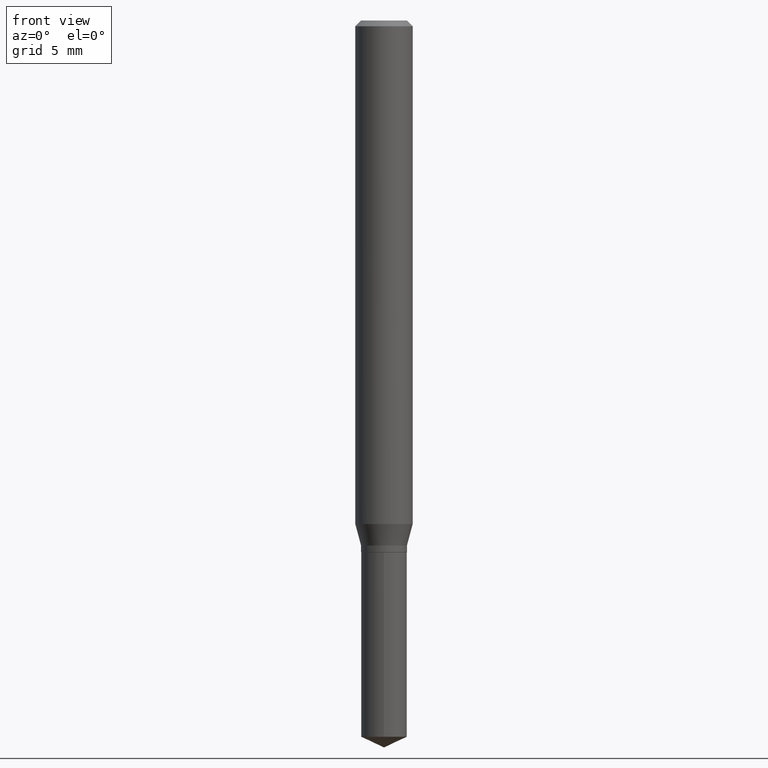
[diagram: clean part render]
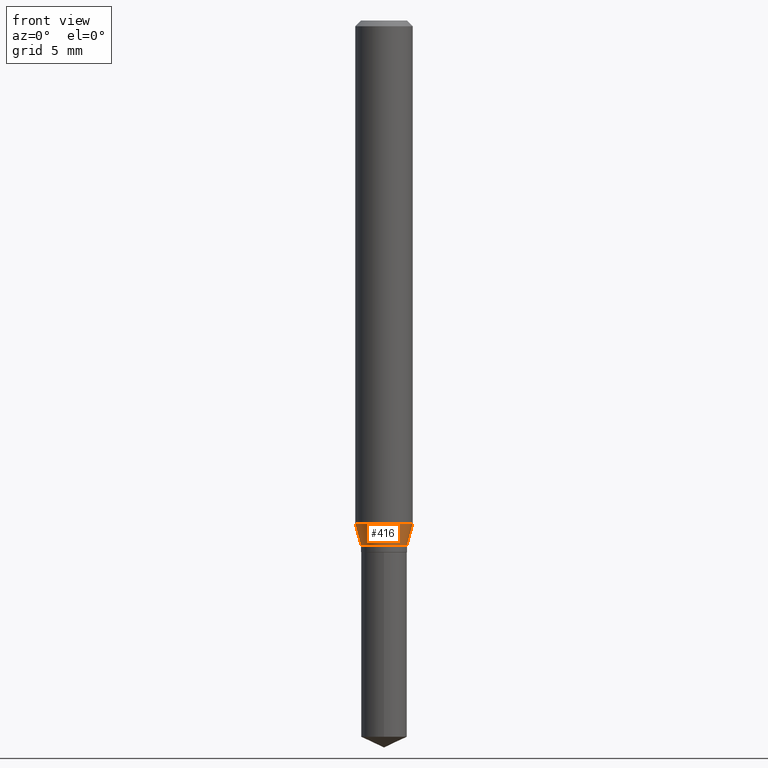
[diagram: same view with one face highlighted and labeled with its STEP entity id]
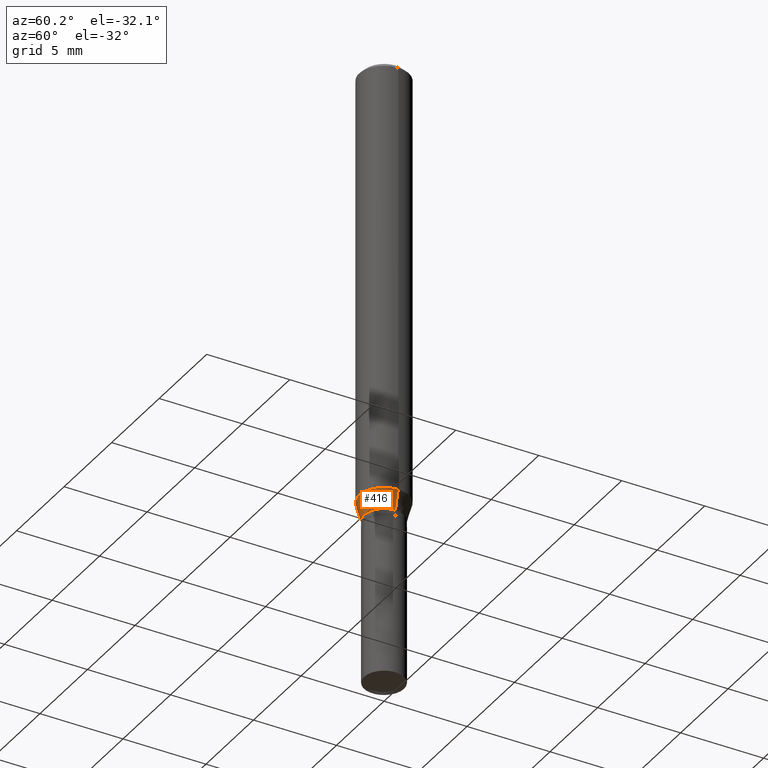
[diagram: same view with one face highlighted and labeled with its STEP entity id]
A machine part, front view. The second image highlights one B-rep face of the part: STEP entity #416.
A second angle (auxiliary view) of the same face is appended — the face is thin or edge-on in the first view.
In plain terms, the highlighted conical surface has half-angle 15 deg.
Its self-contained STEP definition (entity closure, byte-faithful):
#7 = AXIS2_PLACEMENT_3D ( 'NONE', #478, #299, #243 ) ;
#10 = EDGE_CURVE ( 'NONE', #398, #271, #461, .T. ) ;
#19 = DIRECTION ( 'NONE',  ( -0.2588190451025214611, 5.211531920934550253E-15, 0.9659258262890679791 ) ) ;
#28 = CARTESIAN_POINT ( 'NONE',  ( 0.04724999999999997952, -4.101792276872925713E-15, -1.080300000000000038 ) ) ;
#29 = DIRECTION ( 'NONE',  ( 1.000000000000000000, -6.982962677686269077E-15, 0.000000000000000000 ) ) ;
#53 = AXIS2_PLACEMENT_3D ( 'NONE', #356, #207, #29 ) ;
#84 = ORIENTED_EDGE ( 'NONE', *, *, #419, .F. ) ;
#91 = VERTEX_POINT ( 'NONE', #217 ) ;
#97 = VERTEX_POINT ( 'NONE', #178 ) ;
#111 = ORIENTED_EDGE ( 'NONE', *, *, #130, .T. ) ;
#130 = EDGE_CURVE ( 'NONE', #271, #91, #382, .T. ) ;
#136 = CONICAL_SURFACE ( 'NONE', #226, 0.04724999999999997952, 0.2617993877991501850 ) ;
#172 = ORIENTED_EDGE ( 'NONE', *, *, #10, .T. ) ;
#178 = CARTESIAN_POINT ( 'NONE',  ( -0.05905000000000013016, -3.198513253033061898E-15, -1.036261800470686723 ) ) ;
#184 = CARTESIAN_POINT ( 'NONE',  ( -0.04724999999999997952, -3.460032494876678049E-15, -1.080300000000000038 ) ) ;
#199 = CARTESIAN_POINT ( 'NONE',  ( 0.04724999999999997952, -4.101792276872925713E-15, -1.080300000000000038 ) ) ;
#207 = DIRECTION ( 'NONE',  ( -2.445468806185136597E-29, 3.491481338843145583E-15, 1.000000000000000000 ) ) ;
#217 = CARTESIAN_POINT ( 'NONE',  ( 0.05905000000000013016, -4.030432684616777494E-15, -1.036261800470686723 ) ) ;
#219 = VECTOR ( 'NONE', #19, 39.37007874015748143 ) ;
#220 = VECTOR ( 'NONE', #464, 39.37007874015748143 ) ;
#223 = DIRECTION ( 'NONE',  ( 1.000000000000000000, -6.982962677686269077E-15, 0.000000000000000000 ) ) ;
#226 = AXIS2_PLACEMENT_3D ( 'NONE', #230, #430, #223 ) ;
#230 = CARTESIAN_POINT ( 'NONE',  ( 2.641839951321803071E-29, -3.771847290352249705E-15, -1.080300000000000038 ) ) ;
#243 = DIRECTION ( 'NONE',  ( 1.000000000000000000, -6.982962677686265133E-15, 0.000000000000000000 ) ) ;
#251 = EDGE_CURVE ( 'NONE', #398, #97, #310, .T. ) ;
#271 = VERTEX_POINT ( 'NONE', #28 ) ;
#290 = CIRCLE ( 'NONE', #7, 0.05905000000000013016 ) ;
#299 = DIRECTION ( 'NONE',  ( -2.445468806185136597E-29, 3.491481338843145583E-15, 1.000000000000000000 ) ) ;
#310 = LINE ( 'NONE', #387, #219 ) ;
#356 = CARTESIAN_POINT ( 'NONE',  ( 2.641839951321803071E-29, -3.771847290352249705E-15, -1.080300000000000038 ) ) ;
#368 = EDGE_LOOP ( 'NONE', ( #383, #172, #111, #84 ) ) ;
#382 = LINE ( 'NONE', #199, #220 ) ;
#383 = ORIENTED_EDGE ( 'NONE', *, *, #251, .F. ) ;
#387 = CARTESIAN_POINT ( 'NONE',  ( -0.04724999999999997952, -3.436115847705603055E-15, -1.080300000000000038 ) ) ;
#398 = VERTEX_POINT ( 'NONE', #184 ) ;
#416 = ADVANCED_FACE ( 'NONE', ( #470 ), #136, .T. ) ;
#419 = EDGE_CURVE ( 'NONE', #97, #91, #290, .T. ) ;
#430 = DIRECTION ( 'NONE',  ( -2.445468806185136597E-29, 3.491481338843145583E-15, 1.000000000000000000 ) ) ;
#461 = CIRCLE ( 'NONE', #53, 0.04724999999999997952 ) ;
#464 = DIRECTION ( 'NONE',  ( 0.2588190451025214611, 1.565188264969620982E-15, 0.9659258262890679791 ) ) ;
#470 = FACE_OUTER_BOUND ( 'NONE', #368, .T. ) ;
#478 = CARTESIAN_POINT ( 'NONE',  ( 2.534145908092310761E-29, -3.618088738499401785E-15, -1.036261800470686723 ) ) ;